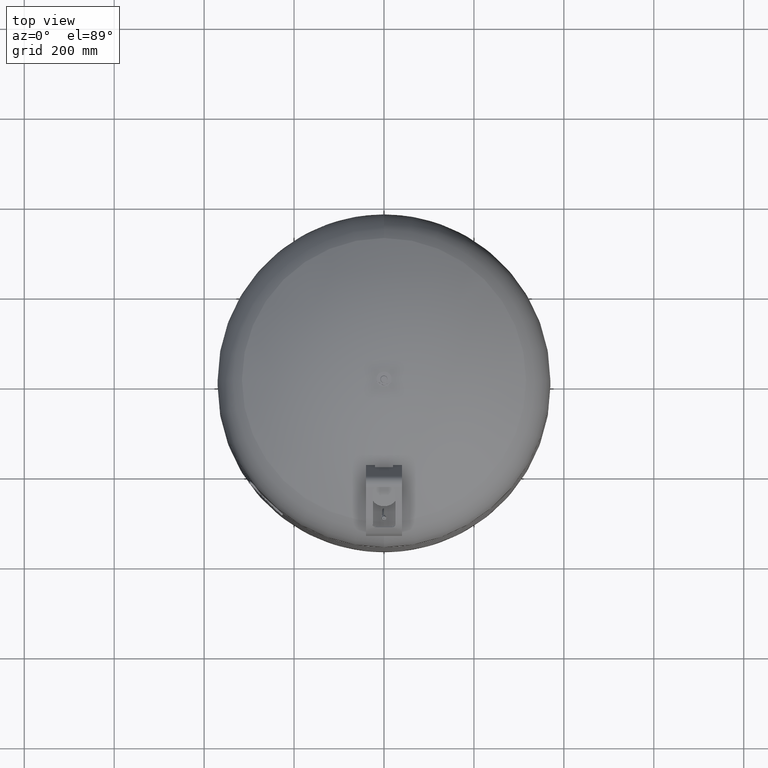
[diagram: clean part render]
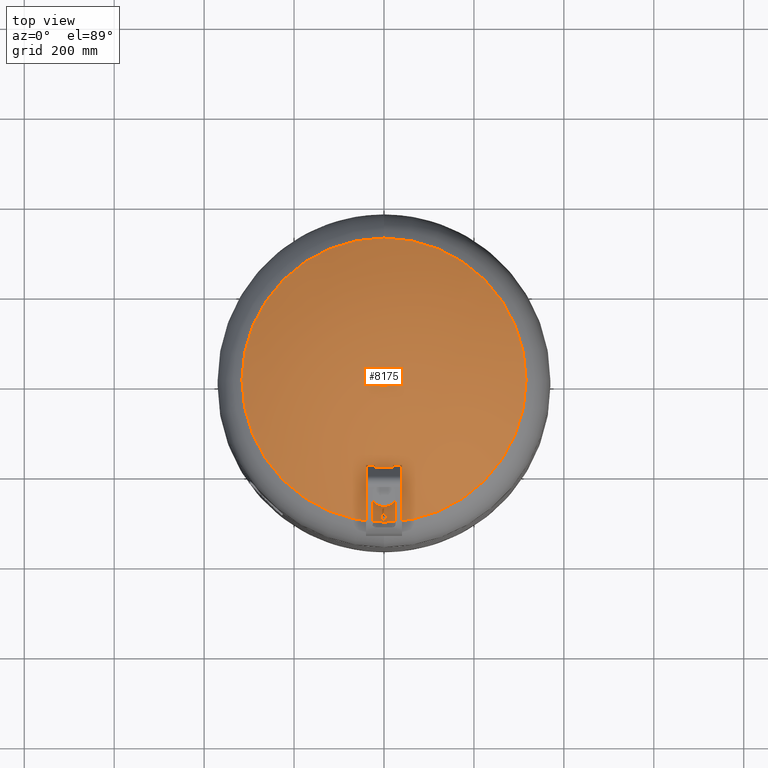
[diagram: same view with one face highlighted and labeled with its STEP entity id]
A machine part, top view. The second image highlights one B-rep face of the part: STEP entity #8175.
In plain terms, the highlighted spherical surface has radius 594 mm.
Its self-contained STEP definition (entity closure, byte-faithful):
#8114=CARTESIAN_POINT('',(-1.114251E-014,-315.931034482758610,1125.014494274920500));
#8115=VERTEX_POINT('',#8114);
#8131=CARTESIAN_POINT('',(2.754660E-014,315.931034482758610,1125.014494274920300));
#8132=VERTEX_POINT('',#8131);
#8140=CARTESIAN_POINT('',(315.931034482758610,-1.671377E-014,1125.014494274920500));
#8141=VERTEX_POINT('',#8140);
#8142=CARTESIAN_POINT('',(-1.114251E-014,-1.671377E-014,1125.014494274920500));
#8143=DIRECTION('',(0.0,0.0,-1.0));
#8144=DIRECTION('',(1.0,0.0,0.0));
#8145=AXIS2_PLACEMENT_3D('',#8142,#8143,#8144);
#8146=CIRCLE('',#8145,315.931034482758610);
#8147=EDGE_CURVE('',#8132,#8141,#8146,.T.);
#8149=CARTESIAN_POINT('',(-1.114251E-014,-1.671377E-014,1125.014494274920500));
#8150=DIRECTION('',(0.0,0.0,-1.0));
#8151=DIRECTION('',(1.0,0.0,0.0));
#8152=AXIS2_PLACEMENT_3D('',#8149,#8150,#8151);
#8153=CIRCLE('',#8152,315.931034482758610);
#8154=EDGE_CURVE('',#8141,#8115,#8153,.T.);
#8159=CARTESIAN_POINT('',(-7.274402E-014,-1.091160E-013,622.0));
#8160=DIRECTION('',(0.0,-1.0,0.0));
#8161=DIRECTION('',(-1.0,0.0,0.0));
#8162=AXIS2_PLACEMENT_3D('',#8159,#8160,#8161);
#8163=SPHERICAL_SURFACE('',#8162,594.0);
#8164=ORIENTED_EDGE('',*,*,#8154,.F.);
#8165=ORIENTED_EDGE('',*,*,#8147,.F.);
#8166=CARTESIAN_POINT('',(-1.114251E-014,-1.671377E-014,1125.014494274920500));
#8167=DIRECTION('',(0.0,0.0,-1.0));
#8168=DIRECTION('',(1.0,0.0,0.0));
#8169=AXIS2_PLACEMENT_3D('',#8166,#8167,#8168);
#8170=CIRCLE('',#8169,315.931034482758610);
#8171=EDGE_CURVE('',#8115,#8132,#8170,.T.);
#8172=ORIENTED_EDGE('',*,*,#8171,.F.);
#8173=EDGE_LOOP('',(#8164,#8165,#8172));
#8174=FACE_OUTER_BOUND('',#8173,.T.);
#8175=ADVANCED_FACE('',(#8174),#8163,.T.);